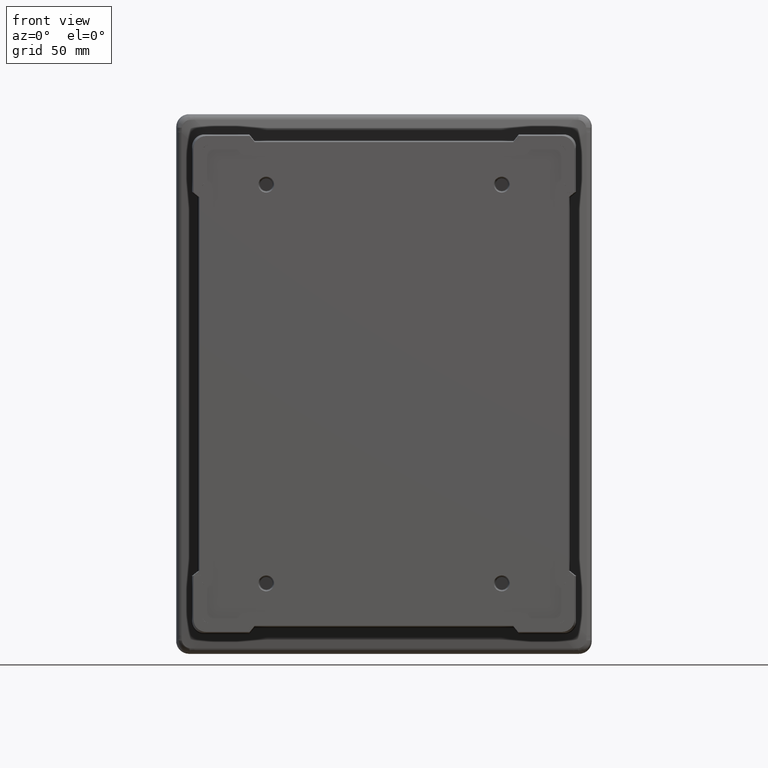
[diagram: clean part render]
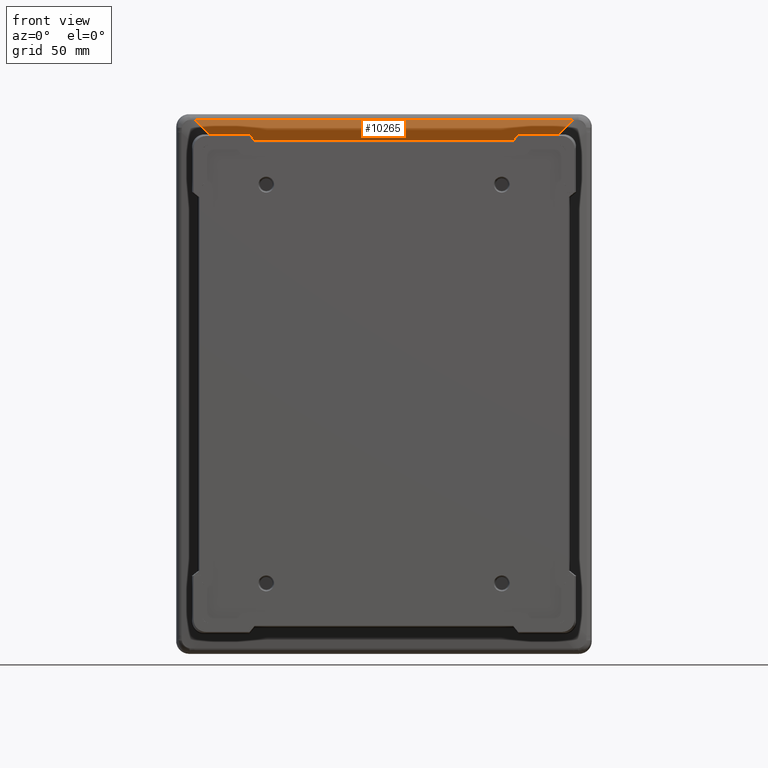
[diagram: same view with one face highlighted and labeled with its STEP entity id]
A machine part, front view. The second image highlights one B-rep face of the part: STEP entity #10265.
In plain terms, the highlighted planar face has unit normal (0, -0.9781, 0.2079).
Its self-contained STEP definition (entity closure, byte-faithful):
#83 = VERTEX_POINT ( 'NONE', #4925 ) ;
#113 = PLANE ( 'NONE',  #1744 ) ;
#321 = EDGE_CURVE ( 'NONE', #8251, #2651, #11834, .T. ) ;
#684 = CARTESIAN_POINT ( 'NONE',  ( 89.15714346271285300, -14.40609603904655800, 113.9966118100743800 ) ) ;
#753 = CARTESIAN_POINT ( 'NONE',  ( 54.57215332082755300, -16.61832142533846800, 103.5889096487727100 ) ) ;
#1300 = ORIENTED_EDGE ( 'NONE', *, *, #321, .T. ) ;
#1580 = VERTEX_POINT ( 'NONE', #6818 ) ;
#1744 = AXIS2_PLACEMENT_3D ( 'NONE', #12473, #14985, #6429 ) ;
#1758 = CARTESIAN_POINT ( 'NONE',  ( -75.58649666835447100, -15.71341567776968200, 107.8461564750249800 ) ) ;
#1816 = LINE ( 'NONE', #4173, #6265 ) ;
#1955 = EDGE_CURVE ( 'NONE', #5207, #83, #8788, .T. ) ;
#2250 = VECTOR ( 'NONE', #9059, 1000.000000000000000 ) ;
#2651 = VERTEX_POINT ( 'NONE', #8298 ) ;
#2837 = VERTEX_POINT ( 'NONE', #7024 ) ;
#2902 = VERTEX_POINT ( 'NONE', #13356 ) ;
#3484 = EDGE_CURVE ( 'NONE', #1580, #2651, #1816, .T. ) ;
#3548 = CARTESIAN_POINT ( 'NONE',  ( -80.99999999999998600, -16.27980661332283300, 105.1814966258859100 ) ) ;
#3658 = DIRECTION ( 'NONE',  ( -1.000000000000000000, -0.0000000000000000000, -0.0000000000000000000 ) ) ;
#3717 = EDGE_CURVE ( 'NONE', #2902, #9374, #4694, .T. ) ;
#3977 = ORIENTED_EDGE ( 'NONE', *, *, #7455, .F. ) ;
#4105 = EDGE_CURVE ( 'NONE', #83, #2837, #12172, .T. ) ;
#4173 = CARTESIAN_POINT ( 'NONE',  ( -58.77768429388774500, -15.54249566907966300, 108.6502718942204000 ) ) ;
#4393 = ORIENTED_EDGE ( 'NONE', *, *, #3717, .F. ) ;
#4694 = LINE ( 'NONE', #753, #14107 ) ;
#4857 = CARTESIAN_POINT ( 'NONE',  ( 55.89544802583821300, -16.27980661332283300, 105.1814966258859100 ) ) ;
#4925 = CARTESIAN_POINT ( 'NONE',  ( 81.73695200340390000, -14.40609603904656000, 113.9966118100743800 ) ) ;
#5207 = VERTEX_POINT ( 'NONE', #14348 ) ;
#5611 = DIRECTION ( 'NONE',  ( 1.000000000000000000, 0.0000000000000000000, 0.0000000000000000000 ) ) ;
#5928 = FACE_OUTER_BOUND ( 'NONE', #11607, .T. ) ;
#6265 = VECTOR ( 'NONE', #15246, 1000.000000000000100 ) ;
#6354 = LINE ( 'NONE', #14487, #6928 ) ;
#6400 = DIRECTION ( 'NONE',  ( 0.6992527780868756900, -0.1486307662483552200, -0.6992527780868756900 ) ) ;
#6429 = DIRECTION ( 'NONE',  ( 0.0000000000000000000, -0.2079116908177565700, -0.9781476007338061300 ) ) ;
#6746 = DIRECTION ( 'NONE',  ( -1.000000000000000000, -0.0000000000000000000, -0.0000000000000000000 ) ) ;
#6818 = CARTESIAN_POINT ( 'NONE',  ( -55.89544802583822000, -16.27980661332283300, 105.1814966258859100 ) ) ;
#6928 = VECTOR ( 'NONE', #15855, 1000.000000000000000 ) ;
#6934 = ORIENTED_EDGE ( 'NONE', *, *, #3484, .F. ) ;
#6967 = EDGE_CURVE ( 'NONE', #2902, #5207, #6354, .T. ) ;
#7024 = CARTESIAN_POINT ( 'NONE',  ( -81.73695200340387100, -14.40609603904655400, 113.9966118100744000 ) ) ;
#7455 = EDGE_CURVE ( 'NONE', #9374, #1580, #10999, .T. ) ;
#8120 = ORIENTED_EDGE ( 'NONE', *, *, #4105, .T. ) ;
#8251 = VERTEX_POINT ( 'NONE', #1758 ) ;
#8298 = CARTESIAN_POINT ( 'NONE',  ( -58.10953762954196100, -15.71341567776971400, 107.8461564750249800 ) ) ;
#8587 = VECTOR ( 'NONE', #5611, 1000.000000000000000 ) ;
#8788 = LINE ( 'NONE', #12643, #2250 ) ;
#9059 = DIRECTION ( 'NONE',  ( 0.6992527780868756900, 0.1486307662483552200, 0.6992527780868756900 ) ) ;
#9374 = VERTEX_POINT ( 'NONE', #4857 ) ;
#10137 = CARTESIAN_POINT ( 'NONE',  ( 0.8461073502833843500, -31.95966718745743400, 31.41355245638713400 ) ) ;
#10265 = ADVANCED_FACE ( 'NONE', ( #5928 ), #113, .T. ) ;
#10283 = ORIENTED_EDGE ( 'NONE', *, *, #6967, .T. ) ;
#10999 = LINE ( 'NONE', #3548, #15914 ) ;
#11403 = VECTOR ( 'NONE', #6746, 1000.000000000000000 ) ;
#11607 = EDGE_LOOP ( 'NONE', ( #3977, #4393, #10283, #14734, #8120, #13877, #1300, #6934 ) ) ;
#11757 = LINE ( 'NONE', #10137, #15600 ) ;
#11834 = LINE ( 'NONE', #15602, #8587 ) ;
#11852 = DIRECTION ( 'NONE',  ( -0.6307102035743588100, -0.1613433086302519500, -0.7590605877447689200 ) ) ;
#12172 = LINE ( 'NONE', #684, #11403 ) ;
#12473 = CARTESIAN_POINT ( 'NONE',  ( 89.15714346271285300, -14.00000000000000200, 115.9071434627127800 ) ) ;
#12643 = CARTESIAN_POINT ( 'NONE',  ( 86.34145632361959600, -13.42737843254676200, 118.6011161302900800 ) ) ;
#13356 = CARTESIAN_POINT ( 'NONE',  ( 58.10953762954194000, -15.71341567776966700, 107.8461564750249800 ) ) ;
#13877 = ORIENTED_EDGE ( 'NONE', *, *, #14159, .T. ) ;
#14107 = VECTOR ( 'NONE', #11852, 1000.000000000000100 ) ;
#14159 = EDGE_CURVE ( 'NONE', #2837, #8251, #11757, .T. ) ;
#14348 = CARTESIAN_POINT ( 'NONE',  ( 75.58649666835451300, -15.71341567776968200, 107.8461564750249800 ) ) ;
#14487 = CARTESIAN_POINT ( 'NONE',  ( 89.64603423559731300, -15.71341567776968200, 107.8461564750249800 ) ) ;
#14734 = ORIENTED_EDGE ( 'NONE', *, *, #1955, .T. ) ;
#14985 = DIRECTION ( 'NONE',  ( 0.0000000000000000000, -0.9781476007338062400, 0.2079116908177565900 ) ) ;
#15246 = DIRECTION ( 'NONE',  ( -0.6307102035743623600, 0.1613433086302513700, 0.7590605877447661500 ) ) ;
#15600 = VECTOR ( 'NONE', #6400, 1000.000000000000000 ) ;
#15602 = CARTESIAN_POINT ( 'NONE',  ( 89.64603423559731300, -15.71341567776968200, 107.8461564750249800 ) ) ;
#15855 = DIRECTION ( 'NONE',  ( 1.000000000000000000, 0.0000000000000000000, 0.0000000000000000000 ) ) ;
#15914 = VECTOR ( 'NONE', #3658, 1000.000000000000000 ) ;